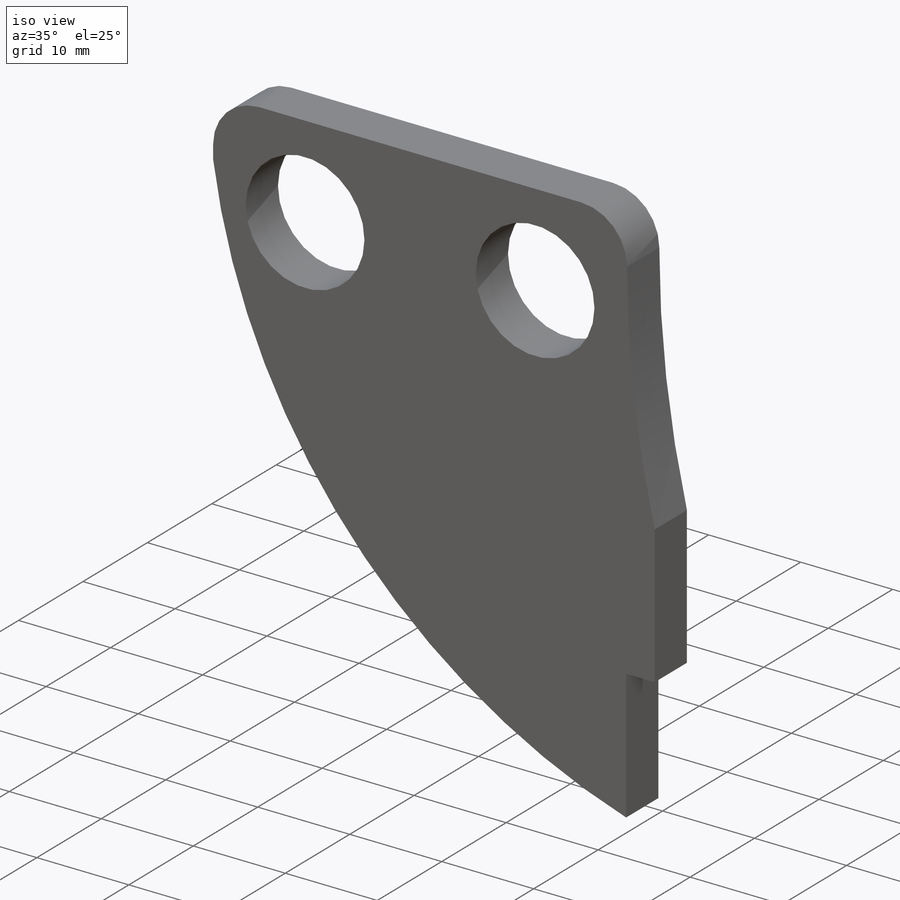
[diagram: iso view]
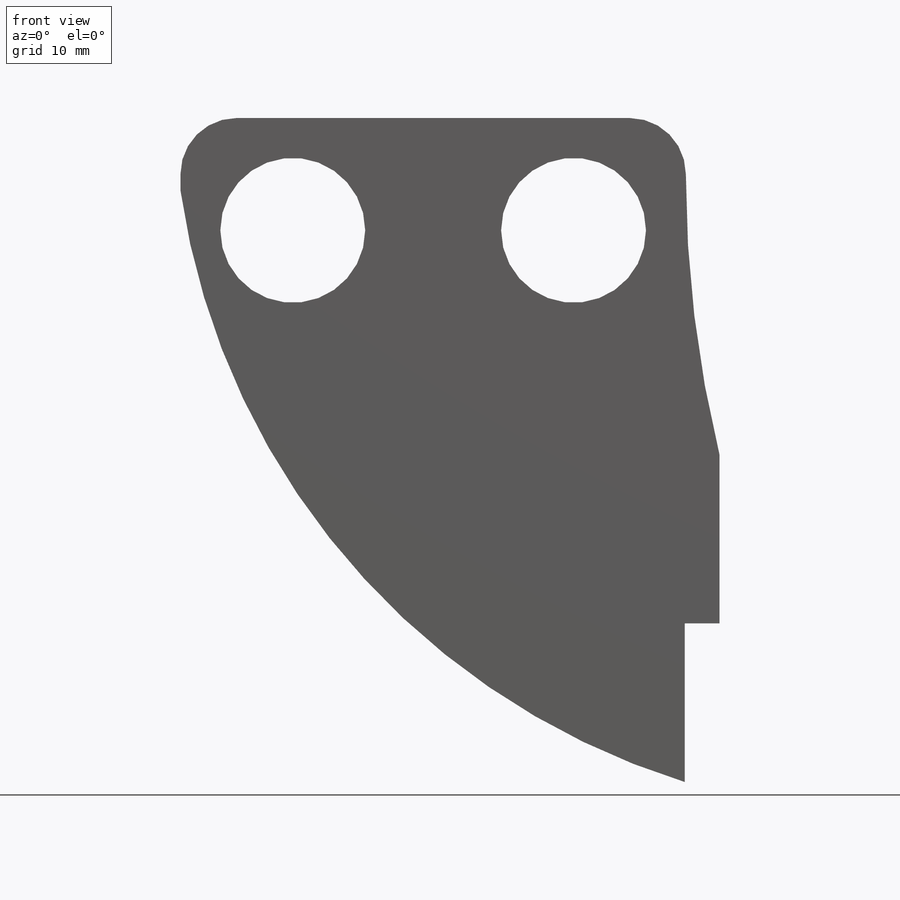
[diagram: front view]
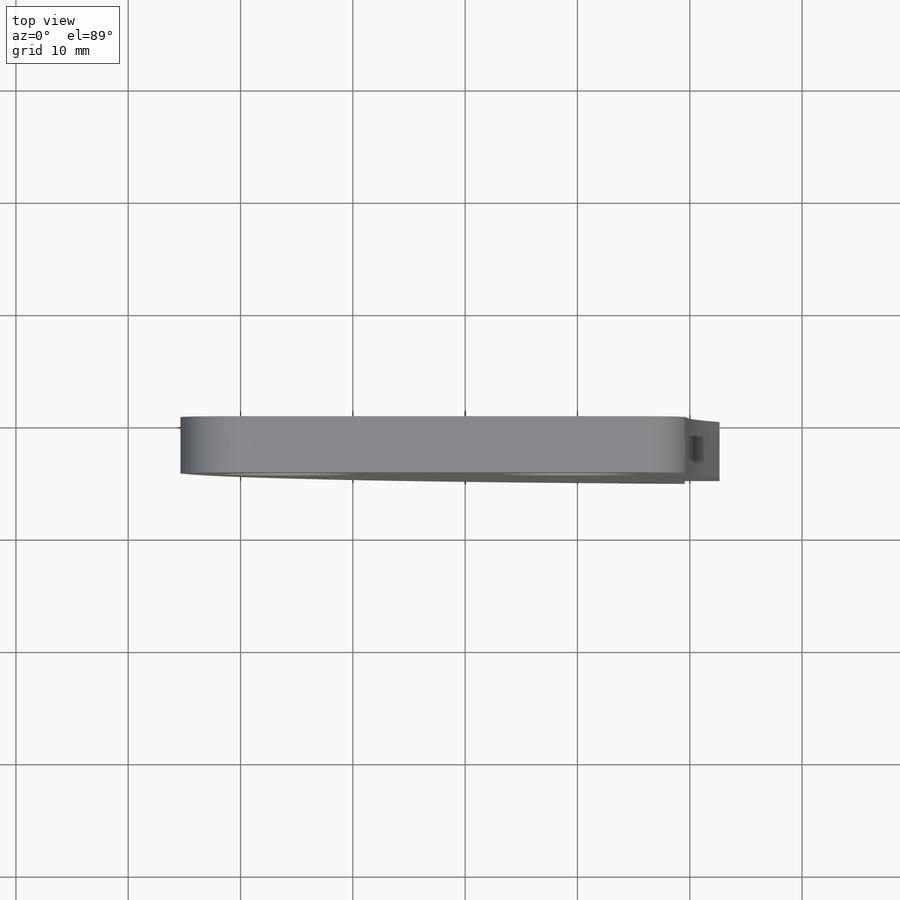
[diagram: top view]
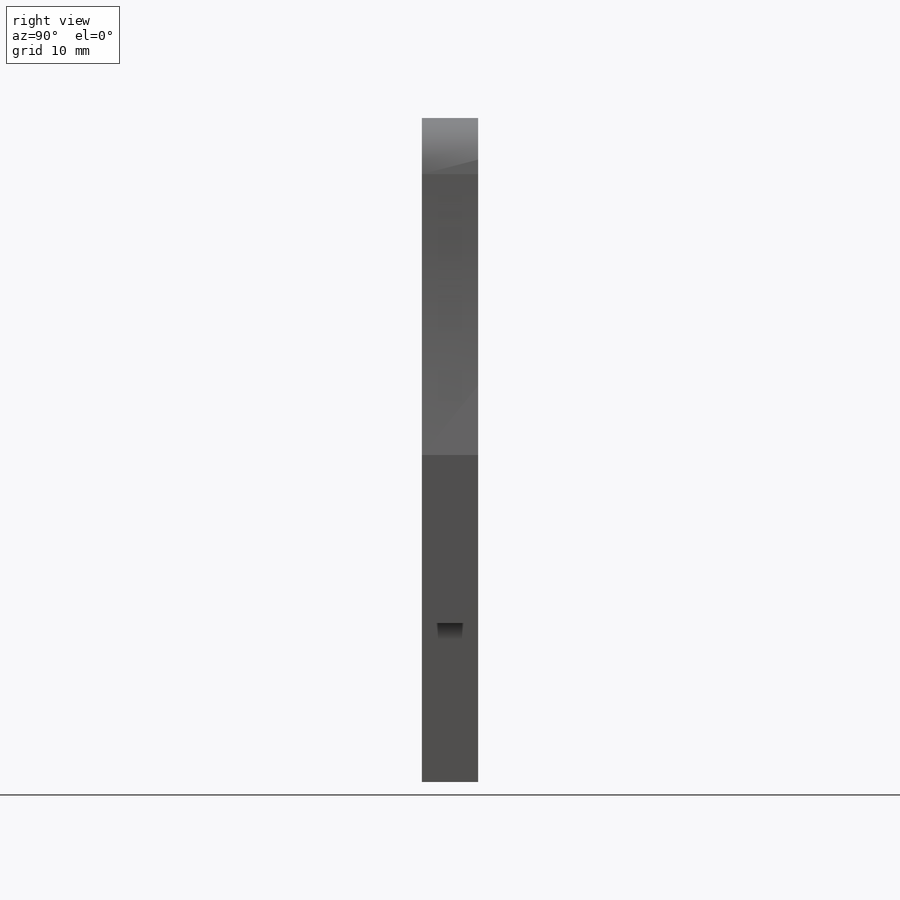
[diagram: right view]
SOLIDWORKS PART (.sldprt)
format: sldprt  version: not decoded by parser v0  size: 355,840 bytes
history: native  units: mm
features: sketch x2, material x1, extrude x1, cut_extrude x1, fillet x1 (+13 scaffold rows collapsed)
feature tree (19):
  scaffold x13  (default folders/planes/origin — collapsed)
  material  "Teak"
  sketch  "Sketch2"  dims[c1.D1=12.9mm c1.D5=12.9mm c1.D9=~27.443929mm c1.D10=~15.003783mm c1.D2=~308.629419mm c1.D12=~48.076923mm c2.D1=30.0mm c2.D2=13.0mm c2.D3=10.0mm c2.D4=10.0mm c2.D6=20.0mm c2.D7=20.0mm c2.D8=60.0mm c3.D7=20.0mm c3.D8=20.0mm c3.D6=25.0mm c3.D9=0.0mm c4.D7=55.0mm c4.D8=5.0mm c4.D9=30.0mm c4.D10=10.0mm c4.D11=0.0mm c4.D2=6.45mm c5.D7=50.0mm c5.D12=25.0mm c5.D13=15.0mm c5.D8=13.0mm]
  extrude  "Boss-Extrude1"  Depth=5mm
  sketch  "Sketch3"  dims[D1=3.1mm]
  cut_extrude  "Cut-Extrude1"  Depth=15mm
  fillet  "Fillet1"  Radius=5mm
decode coverage: 5 of 5 modeling features carry decoded parameters
note: ~ marks probable driven/reference dimensions
note: suppression state not decoded; provenance and decode notes live in map.json
